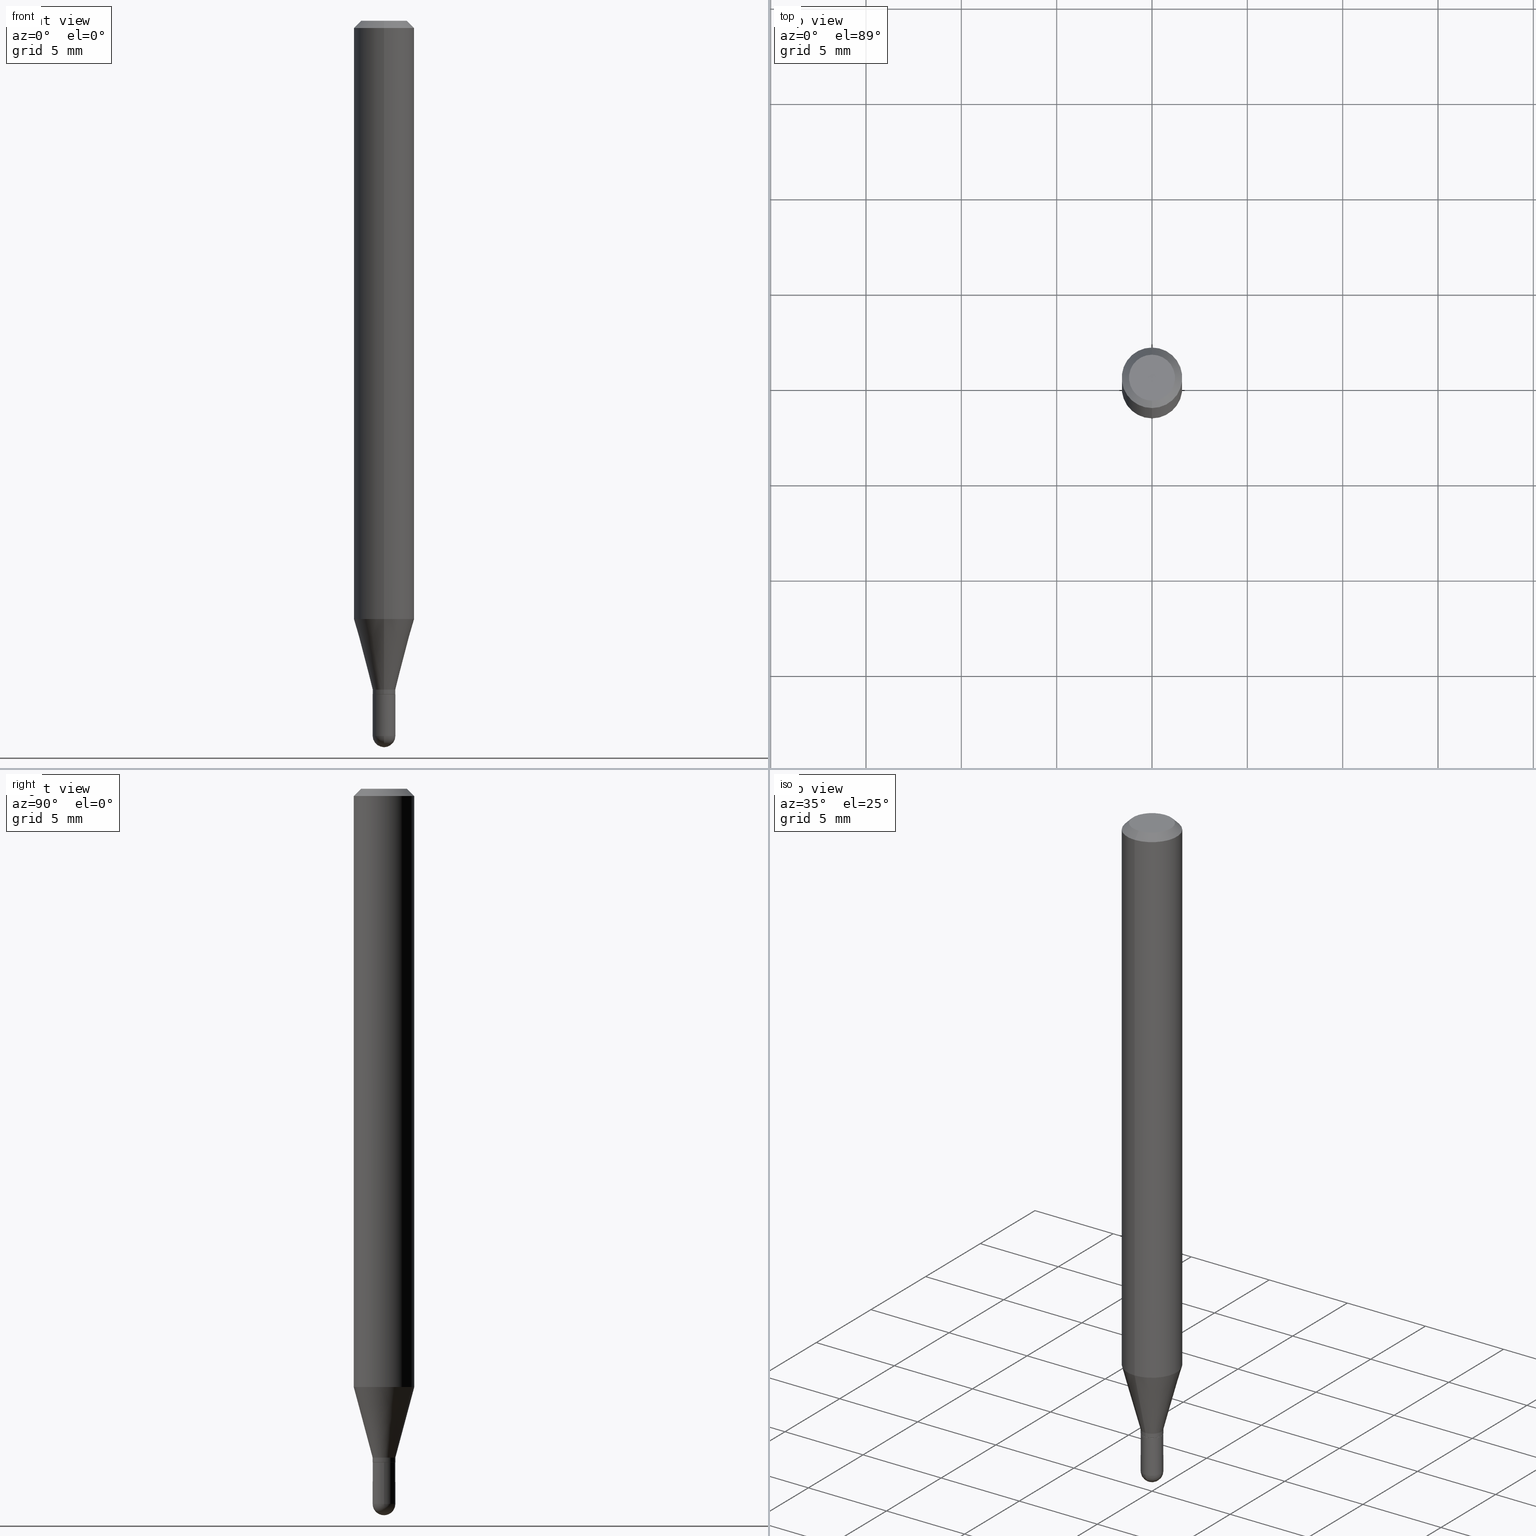
[diagram: canonical four-view strip — front | top / right | iso, engineering-drawing reading convention]
A machine part, canonical four-view strip (front | top / right | iso — engineering-drawing reading convention). The complete STEP part file that produces these views, byte-faithful:
ISO-10303-21;
HEADER;
FILE_DESCRIPTION (( 'STEP AP203' ),
    '1' );
FILE_NAME ('39506.STEP',
    '2024-03-08T12:50:59',
    ( '' ),
    ( '' ),
    'SwSTEP 2.0',
    'SolidWorks 2023',
    '' );
FILE_SCHEMA (( 'CONFIG_CONTROL_DESIGN' ));
ENDSEC;

DATA;
#1 = PERSON_AND_ORGANIZATION_ROLE ( 'creator' ) ;
#2 = CC_DESIGN_PERSON_AND_ORGANIZATION_ASSIGNMENT ( #10, #202, ( #147 ) ) ;
#3 = ORIENTED_EDGE ( 'NONE', *, *, #326, .T. ) ;
#4 = EDGE_CURVE ( 'NONE', #53, #335, #6, .T. ) ;
#5 = ORIENTED_EDGE ( 'NONE', *, *, #483, .T. ) ;
#6 = CIRCLE ( 'NONE', #51, 0.02345000000000019638 ) ;
#7 = CIRCLE ( 'NONE', #176, 0.02344999999999999862 ) ;
#8 = ORIENTED_EDGE ( 'NONE', *, *, #252, .F. ) ;
#9 = DIRECTION ( 'NONE',  ( -2.445355371012872805E-29, 3.491643784466156312E-15, 1.000000000000000000 ) ) ;
#10 = PERSON_AND_ORGANIZATION ( #258, #118 ) ;
#11 = DIRECTION ( 'NONE',  ( -6.982962677686265922E-15, -1.000000000000000000, 0.000000000000000000 ) ) ;
#12 = FACE_OUTER_BOUND ( 'NONE', #312, .T. ) ;
#13 = ADVANCED_FACE ( 'NONE', ( #129 ), #257, .T. ) ;
#14 = DIRECTION ( 'NONE',  ( 1.000000000000000000, -6.982962677686265922E-15, 4.883557194083112901E-29 ) ) ;
#15 = DIRECTION ( 'NONE',  ( -6.982962677686265922E-15, -1.000000000000000000, 0.000000000000000000 ) ) ;
#16 = CC_DESIGN_PERSON_AND_ORGANIZATION_ASSIGNMENT ( #405, #414, ( #346 ) ) ;
#17 = VECTOR ( 'NONE', #186, 39.37007874015748143 ) ;
#18 = FACE_OUTER_BOUND ( 'NONE', #457, .T. ) ;
#19 = VERTEX_POINT ( 'NONE', #195 ) ;
#20 = DIRECTION ( 'NONE',  ( -2.445468806185136597E-29, 3.491481338843145583E-15, 1.000000000000000000 ) ) ;
#21 = ADVANCED_FACE ( 'NONE', ( #404 ), #282, .T. ) ;
#22 = CARTESIAN_POINT ( 'NONE',  ( 1.666222715357800672E-16, 0.02344999999999491241, -1.476549999999999807 ) ) ;
#23 = VECTOR ( 'NONE', #256, 39.37007874015748143 ) ;
#24 = APPROVAL ( #224, 'UNSPECIFIED' ) ;
#25 = CALENDAR_DATE ( 2024, 8, 3 ) ;
#26 = CARTESIAN_POINT ( 'NONE',  ( 1.637504747917769708E-16, 0.02344999999999514140, -1.391000000000000014 ) ) ;
#27 = ADVANCED_FACE ( 'NONE', ( #443 ), #206, .T. ) ;
#28 = ORIENTED_EDGE ( 'NONE', *, *, #357, .F. ) ;
#29 = LOCAL_TIME ( 7, 50, 59.00000000000000000, #509 ) ;
#30 = FACE_OUTER_BOUND ( 'NONE', #74, .T. ) ;
#31 = AXIS2_PLACEMENT_3D ( 'NONE', #369, #332, #102 ) ;
#32 = CARTESIAN_POINT ( 'NONE',  ( 0.02344999999999999862, -1.637504747917429512E-16, 1.143463453924147019E-30 ) ) ;
#33 = DIRECTION ( 'NONE',  ( -6.982962677686265133E-15, -1.000000000000000000, 0.000000000000000000 ) ) ;
#34 = MECHANICAL_CONTEXT ( 'NONE', #432, 'mechanical' ) ;
#35 = APPROVAL_PERSON_ORGANIZATION ( #461, #83, #68 ) ;
#36 = VERTEX_POINT ( 'NONE', #89 ) ;
#37 = EDGE_CURVE ( 'NONE', #56, #36, #496, .T. ) ;
#38 = APPROVAL_ROLE ( '' ) ;
#39 = CARTESIAN_POINT ( 'NONE',  ( 0.02345000000000000556, -5.169749131391573711E-15, -1.476549999999999807 ) ) ;
#40 = ORIENTED_EDGE ( 'NONE', *, *, #387, .F. ) ;
#41 = CIRCLE ( 'NONE', #109, 0.02294999999999999818 ) ;
#42 = AXIS2_PLACEMENT_3D ( 'NONE', #130, #20, #283 ) ;
#43 = DIRECTION ( 'NONE',  ( -2.445468806185136597E-29, 3.491481338843145583E-15, 1.000000000000000000 ) ) ;
#44 = ORIENTED_EDGE ( 'NONE', *, *, #270, .T. ) ;
#45 = ADVANCED_FACE ( 'NONE', ( #18 ), #178, .T. ) ;
#46 = CARTESIAN_POINT ( 'NONE',  ( 3.668033056519500975E-31, -5.237465676699508819E-17, -0.01500000000000078354 ) ) ;
#47 = EDGE_LOOP ( 'NONE', ( #499, #305 ) ) ;
#48 = PERSON_AND_ORGANIZATION ( #258, #118 ) ;
#49 = ORIENTED_EDGE ( 'NONE', *, *, #159, .F. ) ;
#50 = CARTESIAN_POINT ( 'NONE',  ( 4.364351673553921131E-16, 0.06249999999999996531, -0.01500000000000100038 ) ) ;
#51 = AXIS2_PLACEMENT_3D ( 'NONE', #240, #93, #437 ) ;
#52 = AXIS2_PLACEMENT_3D ( 'NONE', #167, #324, #491 ) ;
#53 = VERTEX_POINT ( 'NONE', #201 ) ;
#54 = DIRECTION ( 'NONE',  ( -2.445355371012872805E-29, 3.491643784466156312E-15, 1.000000000000000000 ) ) ;
#55 = DIRECTION ( 'NONE',  ( -6.982962677686265133E-15, -1.000000000000000000, 3.491643784466155918E-15 ) ) ;
#56 = VERTEX_POINT ( 'NONE', #358 ) ;
#57 = ORIENTED_EDGE ( 'NONE', *, *, #145, .T. ) ;
#58 = VECTOR ( 'NONE', #191, 39.37007874015748143 ) ;
#59 = AXIS2_PLACEMENT_3D ( 'NONE', #299, #464, #203 ) ;
#60 = DIRECTION ( 'NONE',  ( -2.445355371012872805E-29, 3.491643784466156312E-15, 1.000000000000000000 ) ) ;
#61 = ADVANCED_FACE ( 'NONE', ( #12 ), #163, .T. ) ;
#62 = DIRECTION ( 'NONE',  ( -1.000000000000000000, 6.982962677686265922E-15, -4.883557194083112340E-29 ) ) ;
#63 = LINE ( 'NONE', #100, #508 ) ;
#64 = CC_DESIGN_APPROVAL ( #303, ( #147 ) ) ;
#65 = EDGE_CURVE ( 'NONE', #335, #53, #495, .T. ) ;
#66 = APPROVAL_STATUS ( 'not_yet_approved' ) ;
#67 =( NAMED_UNIT ( * ) PLANE_ANGLE_UNIT ( ) SI_UNIT ( $, .RADIAN. ) );
#68 = APPROVAL_ROLE ( '' ) ;
#69 = AXIS2_PLACEMENT_3D ( 'NONE', #322, #441, #15 ) ;
#70 = DIRECTION ( 'NONE',  ( -6.982962677686265922E-15, -1.000000000000000000, 0.000000000000000000 ) ) ;
#71 = CONICAL_SURFACE ( 'NONE', #59, 0.06250000000000001388, 0.7853981633974473908 ) ;
#72 =( NAMED_UNIT ( * ) SI_UNIT ( $, .STERADIAN. ) SOLID_ANGLE_UNIT ( ) );
#73 = ADVANCED_FACE ( 'NONE', ( #406 ), #287, .T. ) ;
#74 = EDGE_LOOP ( 'NONE', ( #158, #267, #117, #49 ) ) ;
#75 = APPROVAL_DATE_TIME ( #306, #24 ) ;
#76 = CARTESIAN_POINT ( 'NONE',  ( 3.020658028844344291E-29, -4.313099828530658848E-15, -1.235263415964436895 ) ) ;
#77 = APPROVAL_ROLE ( '' ) ;
#78 = ORIENTED_EDGE ( 'NONE', *, *, #192, .F. ) ;
#79 = EDGE_CURVE ( 'NONE', #232, #376, #477, .T. ) ;
#80 = CONICAL_SURFACE ( 'NONE', #221, 0.06250000000000001388, 0.7853981633974473908 ) ;
#81 = DATE_AND_TIME ( #197, #278 ) ;
#82 = ORIENTED_EDGE ( 'NONE', *, *, #108, .F. ) ;
#83 = APPROVAL ( #66, 'UNSPECIFIED' ) ;
#84 = LINE ( 'NONE', #394, #58 ) ;
#85 = VERTEX_POINT ( 'NONE', #168 ) ;
#86 = CYLINDRICAL_SURFACE ( 'NONE', #214, 0.02344999999999999862 ) ;
#87 = VERTEX_POINT ( 'NONE', #444 ) ;
#88 = LINE ( 'NONE', #50, #410 ) ;
#89 = CARTESIAN_POINT ( 'NONE',  ( 3.840629472727450339E-16, 0.04750000000000004219, -9.492000972570193079E-16 ) ) ;
#90 = CARTESIAN_POINT ( 'NONE',  ( 3.377035767368778363E-29, -4.821960066347763287E-15, -1.381000000000000449 ) ) ;
#91 = DIRECTION ( 'NONE',  ( -6.982962677686265133E-15, -1.000000000000000000, 3.491643784466155918E-15 ) ) ;
#92 = DIRECTION ( 'NONE',  ( -6.982962677686265922E-15, -1.000000000000000000, 0.000000000000000000 ) ) ;
#93 = DIRECTION ( 'NONE',  ( -2.445355371012872805E-29, 3.491643784466156312E-15, 1.000000000000000000 ) ) ;
#94 = ORIENTED_EDGE ( 'NONE', *, *, #226, .T. ) ;
#95 = CIRCLE ( 'NONE', #409, 0.06250000000000001388 ) ;
#96 = CONICAL_SURFACE ( 'NONE', #388, 0.02294999999999999818, 0.7853981633969275844 ) ;
#97 = VECTOR ( 'NONE', #54, 39.37007874015748143 ) ;
#98 = ORIENTED_EDGE ( 'NONE', *, *, #418, .F. ) ;
#99 = DIRECTION ( 'NONE',  ( -2.445355371012872805E-29, 3.491643784466156312E-15, 1.000000000000000000 ) ) ;
#100 = CARTESIAN_POINT ( 'NONE',  ( -1.637504747917424089E-16, -0.02344999999999992230, 8.187904674573109926E-17 ) ) ;
#101 = ADVANCED_FACE ( 'NONE', ( #30 ), #211, .T. ) ;
#102 = DIRECTION ( 'NONE',  ( -6.982962677686265133E-15, -1.000000000000000000, 3.491643784466155918E-15 ) ) ;
#103 = LINE ( 'NONE', #293, #23 ) ;
#104 = LOCAL_TIME ( 7, 50, 59.00000000000000000, #374 ) ;
#105 = LINE ( 'NONE', #296, #445 ) ;
#106 = MANIFOLD_SOLID_BREP ( 'Body-Move/Copy2[1]', #220 ) ;
#107 = DESIGN_CONTEXT ( 'detailed design', #336, 'design' ) ;
#108 = EDGE_CURVE ( 'NONE', #121, #284, #321, .T. ) ;
#109 = AXIS2_PLACEMENT_3D ( 'NONE', #171, #99, #250 ) ;
#110 = AXIS2_PLACEMENT_3D ( 'NONE', #161, #14, #431 ) ;
#111 = PRODUCT_DEFINITION ( 'UNKNOWN', '', #147, #107 ) ;
#112 = ORIENTED_EDGE ( 'NONE', *, *, #415, .T. ) ;
#113 = DIRECTION ( 'NONE',  ( 2.445355371012872525E-29, -3.491643784466156312E-15, -1.000000000000000000 ) ) ;
#114 = ORIENTED_EDGE ( 'NONE', *, *, #217, .T. ) ;
#115 = CARTESIAN_POINT ( 'NONE',  ( 3.608851600824538277E-29, -5.158218567612847628E-15, -1.476550000000000029 ) ) ;
#116 = CALENDAR_DATE ( 2024, 8, 3 ) ;
#117 = ORIENTED_EDGE ( 'NONE', *, *, #300, .F. ) ;
#118 = ORGANIZATION ( 'UNSPECIFIED', 'UNSPECIFIED', '' ) ;
#119 = CARTESIAN_POINT ( 'NONE',  ( 3.400266643393399837E-29, -4.855130682300190944E-15, -1.390500000000000069 ) ) ;
#120 = AXIS2_PLACEMENT_3D ( 'NONE', #90, #320, #273 ) ;
#121 = VERTEX_POINT ( 'NONE', #122 ) ;
#122 = CARTESIAN_POINT ( 'NONE',  ( -4.364351673553615941E-16, -0.06250000000000432987, -1.235263415964436673 ) ) ;
#123 = ORIENTED_EDGE ( 'NONE', *, *, #264, .T. ) ;
#124 = LOCAL_TIME ( 7, 50, 59.00000000000000000, #455 ) ;
#125 = EDGE_CURVE ( 'NONE', #301, #232, #390, .T. ) ;
#126 = FACE_OUTER_BOUND ( 'NONE', #234, .T. ) ;
#127 = CIRCLE ( 'NONE', #205, 0.02345000000000000556 ) ;
#128 = ORIENTED_EDGE ( 'NONE', *, *, #65, .T. ) ;
#129 = FACE_OUTER_BOUND ( 'NONE', #272, .T. ) ;
#130 = CARTESIAN_POINT ( 'NONE',  ( 3.610856965772663268E-29, -5.155346770868846109E-15, -1.476549999999999807 ) ) ;
#131 = ORIENTED_EDGE ( 'NONE', *, *, #418, .T. ) ;
#132 = ORIENTED_EDGE ( 'NONE', *, *, #4, .T. ) ;
#133 = AXIS2_PLACEMENT_3D ( 'NONE', #401, #328, #55 ) ;
#134 = CARTESIAN_POINT ( 'NONE',  ( 1.666222715357744219E-16, 0.02344999999999471466, -1.390500000000000069 ) ) ;
#135 = DIMENSIONAL_EXPONENTS ( 1.000000000000000000, 0.000000000000000000, 0.000000000000000000, 0.000000000000000000, 0.000000000000000000, 0.000000000000000000, 0.000000000000000000 ) ;
#136 = EDGE_CURVE ( 'NONE', #465, #413, #233, .T. ) ;
#137 = DIRECTION ( 'NONE',  ( -2.445355371012872805E-29, 3.491643784466156312E-15, 1.000000000000000000 ) ) ;
#138 = AXIS2_PLACEMENT_3D ( 'NONE', #271, #440, #153 ) ;
#139 = DIRECTION ( 'NONE',  ( -1.807323732225330534E-15, -0.2588190451025182415, 0.9659258262890689783 ) ) ;
#140 = VERTEX_POINT ( 'NONE', #505 ) ;
#141 = ORIENTED_EDGE ( 'NONE', *, *, #407, .F. ) ;
#142 = ADVANCED_FACE ( 'NONE', ( #144 ), #71, .T. ) ;
#143 = UNCERTAINTY_MEASURE_WITH_UNIT (LENGTH_MEASURE( 1.000000000000000082E-05 ), #460, 'distance_accuracy_value', 'NONE');
#144 = FACE_OUTER_BOUND ( 'NONE', #265, .T. ) ;
#145 = EDGE_CURVE ( 'NONE', #36, #193, #88, .T. ) ;
#146 = APPLICATION_PROTOCOL_DEFINITION ( 'international standard', 'config_control_design', 1994, #336 ) ;
#147 = PRODUCT_DEFINITION_FORMATION_WITH_SPECIFIED_SOURCE ( 'ANY', '', #323, .NOT_KNOWN. ) ;
#148 = EDGE_LOOP ( 'NONE', ( #131, #160, #325, #356 ) ) ;
#149 = ADVANCED_FACE ( 'NONE', ( #359 ), #489, .T. ) ;
#150 = DIRECTION ( 'NONE',  ( -4.851104656540959542E-15, -0.7071067811865493491, -0.7071067811865456854 ) ) ;
#151 = ORIENTED_EDGE ( 'NONE', *, *, #483, .F. ) ;
#152 = COORDINATED_UNIVERSAL_TIME_OFFSET ( 5, 0, .BEHIND. ) ;
#153 = DIRECTION ( 'NONE',  ( 1.000000000000000000, -6.982962677686254089E-15, 0.000000000000000000 ) ) ;
#154 = ORIENTED_EDGE ( 'NONE', *, *, #381, .F. ) ;
#155 = EDGE_LOOP ( 'NONE', ( #363, #198, #112, #424 ) ) ;
#156 = AXIS2_PLACEMENT_3D ( 'NONE', #166, #209, #366 ) ;
#157 = AXIS2_PLACEMENT_3D ( 'NONE', #454, #501, #169 ) ;
#158 = ORIENTED_EDGE ( 'NONE', *, *, #108, .T. ) ;
#159 = EDGE_CURVE ( 'NONE', #121, #190, #315, .T. ) ;
#160 = ORIENTED_EDGE ( 'NONE', *, *, #387, .T. ) ;
#161 = CARTESIAN_POINT ( 'NONE',  ( 3.608851600824538277E-29, -5.158218567612847628E-15, -1.476550000000000029 ) ) ;
#162 = CC_DESIGN_PERSON_AND_ORGANIZATION_ASSIGNMENT ( #48, #355, ( #147 ) ) ;
#163 = CYLINDRICAL_SURFACE ( 'NONE', #288, 0.02344999999999999862 ) ;
#164 = CARTESIAN_POINT ( 'NONE',  ( -4.364351673553916694E-16, -0.06250000000000001388, 2.182277365291347942E-16 ) ) ;
#165 = AXIS2_PLACEMENT_3D ( 'NONE', #46, #402, #242 ) ;
#166 = CARTESIAN_POINT ( 'NONE',  ( 3.401489321078907027E-29, -4.856876504192424145E-15, -1.391000000000000236 ) ) ;
#167 = CARTESIAN_POINT ( 'NONE',  ( 0.000000000000000000, 0.000000000000000000, 0.000000000000000000 ) ) ;
#168 = CARTESIAN_POINT ( 'NONE',  ( -1.637504747917073539E-16, -0.02345000000000522361, -1.476549999999999807 ) ) ;
#169 = DIRECTION ( 'NONE',  ( -6.982962677686265922E-15, -1.000000000000000000, 3.491643784466156312E-15 ) ) ;
#170 = CARTESIAN_POINT ( 'NONE',  ( 3.610856965772663268E-29, -5.155346770868846109E-15, -1.476549999999999807 ) ) ;
#171 = CARTESIAN_POINT ( 'NONE',  ( 3.401489321078907027E-29, -4.856876504192424145E-15, -1.391000000000000236 ) ) ;
#172 = AXIS2_PLACEMENT_3D ( 'NONE', #345, #113, #504 ) ;
#173 = LINE ( 'NONE', #215, #247 ) ;
#174 = ADVANCED_FACE ( 'NONE', ( #485 ), #80, .T. ) ;
#175 = DIRECTION ( 'NONE',  ( -4.937700262161976356E-15, -0.7071067811861768693, 0.7071067811869181652 ) ) ;
#176 = AXIS2_PLACEMENT_3D ( 'NONE', #327, #456, #285 ) ;
#177 = EDGE_CURVE ( 'NONE', #19, #223, #380, .T. ) ;
#178 = CONICAL_SURFACE ( 'NONE', #156, 0.02294999999999999818, 0.7853981633969275844 ) ;
#179 = DIRECTION ( 'NONE',  ( -2.445355371012872805E-29, 3.491643784466156312E-15, 1.000000000000000000 ) ) ;
#180 = ORIENTED_EDGE ( 'NONE', *, *, #226, .F. ) ;
#181 = ADVANCED_FACE ( 'NONE', ( #126 ), #361, .T. ) ;
#182 = CIRCLE ( 'NONE', #138, 0.02345000000000000556 ) ;
#183 = ORIENTED_EDGE ( 'NONE', *, *, #300, .T. ) ;
#184 = DIRECTION ( 'NONE',  ( 1.000000000000000000, 0.000000000000000000, 0.000000000000000000 ) ) ;
#185 = EDGE_CURVE ( 'NONE', #87, #140, #208, .T. ) ;
#186 = DIRECTION ( 'NONE',  ( -2.445355371012872805E-29, 3.491643784466156312E-15, 1.000000000000000000 ) ) ;
#187 = ORIENTED_EDGE ( 'NONE', *, *, #307, .F. ) ;
#188 = CARTESIAN_POINT ( 'NONE',  ( 4.440892098500626162E-16, 0.06250000000000001388, -2.182277365291347942E-16 ) ) ;
#189 = PRODUCT_DEFINITION_SHAPE ( 'NONE', 'NONE',  #111 ) ;
#190 = VERTEX_POINT ( 'NONE', #260 ) ;
#191 = DIRECTION ( 'NONE',  ( 5.024295867785445738E-15, 0.7071067811861817543, 0.7071067811869132802 ) ) ;
#192 = EDGE_CURVE ( 'NONE', #314, #87, #339, .T. ) ;
#193 = VERTEX_POINT ( 'NONE', #371 ) ;
#194 = DIRECTION ( 'NONE',  ( -2.445468806185136597E-29, 3.491481338843145583E-15, 1.000000000000000000 ) ) ;
#195 = CARTESIAN_POINT ( 'NONE',  ( 1.648459146963756983E-16, 0.02294999999999514095, -1.391000000000000236 ) ) ;
#196 = CLOSED_SHELL ( 'NONE', ( #73, #289, #142, #101, #181, #13, #27, #174, #488, #439, #45, #21 ) ) ;
#197 = CALENDAR_DATE ( 2024, 8, 3 ) ;
#198 = ORIENTED_EDGE ( 'NONE', *, *, #307, .T. ) ;
#199 = CC_DESIGN_PERSON_AND_ORGANIZATION_ASSIGNMENT ( #342, #506, ( #323 ) ) ;
#200 = DIRECTION ( 'NONE',  ( -2.445355371012872805E-29, 3.491643784466156312E-15, 1.000000000000000000 ) ) ;
#201 = CARTESIAN_POINT ( 'NONE',  ( 3.053557406929357877E-16, 0.02344999999999537385, -1.381000000000000449 ) ) ;
#202 = PERSON_AND_ORGANIZATION_ROLE ( 'design_supplier' ) ;
#203 = DIRECTION ( 'NONE',  ( 6.982962677686265922E-15, 1.000000000000000000, -3.483106191921934765E-15 ) ) ;
#204 = EDGE_LOOP ( 'NONE', ( #411, #269, #343, #308 ) ) ;
#205 = AXIS2_PLACEMENT_3D ( 'NONE', #259, #377, #470 ) ;
#206 = CYLINDRICAL_SURFACE ( 'NONE', #419, 0.06250000000000001388 ) ;
#207 = CC_DESIGN_DATE_AND_TIME_ASSIGNMENT ( #436, #400, ( #111 ) ) ;
#208 = CIRCLE ( 'NONE', #500, 0.02344999999999999862 ) ;
#209 = DIRECTION ( 'NONE',  ( -2.445355371012872805E-29, 3.491643784466156312E-15, 1.000000000000000000 ) ) ;
#210 = FACE_OUTER_BOUND ( 'NONE', #249, .T. ) ;
#211 = CYLINDRICAL_SURFACE ( 'NONE', #31, 0.06250000000000001388 ) ;
#212 = SPHERICAL_SURFACE ( 'NONE', #426, 0.02345000000000013740 ) ;
#213 = DIRECTION ( 'NONE',  ( -2.445468806185136877E-29, 3.491481338843145188E-15, 1.000000000000000000 ) ) ;
#214 = AXIS2_PLACEMENT_3D ( 'NONE', #389, #43, #238 ) ;
#215 = CARTESIAN_POINT ( 'NONE',  ( -1.602589934528657519E-16, -0.02295000000000485540, -1.391000000000000236 ) ) ;
#216 = ORIENTED_EDGE ( 'NONE', *, *, #326, .F. ) ;
#217 = EDGE_CURVE ( 'NONE', #223, #465, #173, .T. ) ;
#218 = DIRECTION ( 'NONE',  ( -2.445355371012872805E-29, 3.491643784466156312E-15, 1.000000000000000000 ) ) ;
#219 = SHAPE_DEFINITION_REPRESENTATION ( #189, #333 ) ;
#220 = CLOSED_SHELL ( 'NONE', ( #61, #149, #479, #458, #397 ) ) ;
#221 = AXIS2_PLACEMENT_3D ( 'NONE', #403, #281, #482 ) ;
#222 = DIRECTION ( 'NONE',  ( -6.982962677686265922E-15, -1.000000000000000000, 3.483106191921934765E-15 ) ) ;
#223 = VERTEX_POINT ( 'NONE', #291 ) ;
#224 = APPROVAL_STATUS ( 'not_yet_approved' ) ;
#225 = ORIENTED_EDGE ( 'NONE', *, *, #381, .T. ) ;
#226 = EDGE_CURVE ( 'NONE', #335, #121, #105, .T. ) ;
#227 = DIRECTION ( 'NONE',  ( -6.982962677686265922E-15, -1.000000000000000000, 4.370956789862821150E-15 ) ) ;
#228 = FACE_OUTER_BOUND ( 'NONE', #386, .T. ) ;
#229 = DIRECTION ( 'NONE',  ( -2.445355371012872805E-29, 3.491643784466156312E-15, 1.000000000000000000 ) ) ;
#230 = VECTOR ( 'NONE', #150, 39.37007874015748143 ) ;
#231 = CARTESIAN_POINT ( 'NONE',  ( 4.440892098500924943E-16, 0.06249999999999566319, -1.235263415964437339 ) ) ;
#232 = VERTEX_POINT ( 'NONE', #22 ) ;
#233 = CIRCLE ( 'NONE', #453, 0.02344999999999965168 ) ;
#234 = EDGE_LOOP ( 'NONE', ( #128, #353, #82, #180 ) ) ;
#235 = APPROVAL_DATE_TIME ( #81, #303 ) ;
#236 = ORIENTED_EDGE ( 'NONE', *, *, #145, .F. ) ;
#237 = CARTESIAN_POINT ( 'NONE',  ( 3.401647109403525181E-29, -4.856650542330816199E-15, -1.391000000000000014 ) ) ;
#238 = DIRECTION ( 'NONE',  ( 1.000000000000000000, -6.982962677686266711E-15, 4.876176775795936353E-29 ) ) ;
#239 = ORIENTED_EDGE ( 'NONE', *, *, #79, .F. ) ;
#240 = CARTESIAN_POINT ( 'NONE',  ( 3.377035767368778363E-29, -4.821960066347763287E-15, -1.381000000000000449 ) ) ;
#241 = EDGE_CURVE ( 'NONE', #140, #87, #7, .T. ) ;
#242 = DIRECTION ( 'NONE',  ( -6.982962677686265922E-15, -1.000000000000000000, 3.483106191921934765E-15 ) ) ;
#243 = CARTESIAN_POINT ( 'NONE',  ( 0.000000000000000000, 0.000000000000000000, 0.000000000000000000 ) ) ;
#244 = AXIS2_PLACEMENT_3D ( 'NONE', #170, #248, #412 ) ;
#245 = VECTOR ( 'NONE', #451, 39.37007874015748143 ) ;
#246 = CARTESIAN_POINT ( 'NONE',  ( 0.000000000000000000, 0.000000000000000000, 0.000000000000000000 ) ) ;
#247 = VECTOR ( 'NONE', #175, 39.37007874015748143 ) ;
#248 = DIRECTION ( 'NONE',  ( -2.445468806185136597E-29, 3.491481338843145583E-15, 1.000000000000000000 ) ) ;
#249 = EDGE_LOOP ( 'NONE', ( #512, #351, #151, #239 ) ) ;
#250 = DIRECTION ( 'NONE',  ( -6.982962677686265922E-15, -1.000000000000000000, 0.000000000000000000 ) ) ;
#251 = CALENDAR_DATE ( 2024, 8, 3 ) ;
#252 = EDGE_CURVE ( 'NONE', #314, #232, #474, .T. ) ;
#253 = PLANE ( 'NONE',  #157 ) ;
#254 = EDGE_CURVE ( 'NONE', #376, #140, #368, .T. ) ;
#255 = CARTESIAN_POINT ( 'NONE',  ( 3.020658028844344291E-29, -4.313099828530658848E-15, -1.235263415964436895 ) ) ;
#256 = DIRECTION ( 'NONE',  ( -2.445355371012872805E-29, 3.491643784466156312E-15, 1.000000000000000000 ) ) ;
#257 = CONICAL_SURFACE ( 'NONE', #69, 0.02345000000000019638, 0.2617993877991502960 ) ;
#258 = PERSON ( 'UNSPECIFIED', 'UNSPECIFIED', 'UNSPECIFIED', ('UNSPECIFIED'), ('UNSPECIFIED'), ('UNSPECIFIED') ) ;
#259 = CARTESIAN_POINT ( 'NONE',  ( 3.610856965772663268E-29, -5.155346770868846109E-15, -1.476549999999999807 ) ) ;
#260 = CARTESIAN_POINT ( 'NONE',  ( -4.364351673553913736E-16, -0.06250000000000006939, -0.01500000000000056496 ) ) ;
#261 = CARTESIAN_POINT ( 'NONE',  ( 3.401489321078907027E-29, -4.856876504192424145E-15, -1.391000000000000236 ) ) ;
#262 = LENGTH_MEASURE_WITH_UNIT ( LENGTH_MEASURE( 0.02539999999999999897 ), #341 );
#263 = AXIS2_PLACEMENT_3D ( 'NONE', #493, #486, #92 ) ;
#264 = EDGE_CURVE ( 'NONE', #193, #190, #95, .T. ) ;
#265 = EDGE_LOOP ( 'NONE', ( #316, #434, #183, #236 ) ) ;
#266 = CARTESIAN_POINT ( 'NONE',  ( 3.668033056519500975E-31, -5.237465676699508819E-17, -0.01500000000000078354 ) ) ;
#267 = ORIENTED_EDGE ( 'NONE', *, *, #364, .T. ) ;
#268 = CIRCLE ( 'NONE', #294, 0.06250000000000000000 ) ;
#269 = ORIENTED_EDGE ( 'NONE', *, *, #433, .T. ) ;
#270 = EDGE_CURVE ( 'NONE', #36, #56, #463, .T. ) ;
#271 = CARTESIAN_POINT ( 'NONE',  ( 3.610856965772663268E-29, -5.155346770868846109E-15, -1.476549999999999807 ) ) ;
#272 = EDGE_LOOP ( 'NONE', ( #141, #132, #94, #154 ) ) ;
#273 = DIRECTION ( 'NONE',  ( -6.982962677686265922E-15, -1.000000000000000000, 0.000000000000000000 ) ) ;
#274 = FACE_OUTER_BOUND ( 'NONE', #469, .T. ) ;
#275 = ORIENTED_EDGE ( 'NONE', *, *, #177, .T. ) ;
#276 = ORIENTED_EDGE ( 'NONE', *, *, #79, .T. ) ;
#277 = DIRECTION ( 'NONE',  ( -6.982962677686265133E-15, -1.000000000000000000, 0.000000000000000000 ) ) ;
#278 = LOCAL_TIME ( 7, 50, 59.00000000000000000, #350 ) ;
#279 = APPROVAL_STATUS ( 'not_yet_approved' ) ;
#280 = ORIENTED_EDGE ( 'NONE', *, *, #252, .T. ) ;
#281 = DIRECTION ( 'NONE',  ( 2.445355371012872805E-29, -3.491643784466156312E-15, -1.000000000000000000 ) ) ;
#282 = CYLINDRICAL_SURFACE ( 'NONE', #286, 0.02344999999999992230 ) ;
#283 = DIRECTION ( 'NONE',  ( 1.000000000000000000, -6.982962677686254089E-15, 0.000000000000000000 ) ) ;
#284 = VERTEX_POINT ( 'NONE', #231 ) ;
#285 = DIRECTION ( 'NONE',  ( 1.000000000000000000, -6.982962677686256455E-15, 0.000000000000000000 ) ) ;
#286 = AXIS2_PLACEMENT_3D ( 'NONE', #484, #60, #354 ) ;
#287 = CYLINDRICAL_SURFACE ( 'NONE', #52, 0.02344999999999992230 ) ;
#288 = AXIS2_PLACEMENT_3D ( 'NONE', #243, #490, #318 ) ;
#289 = ADVANCED_FACE ( 'NONE', ( #459 ), #96, .T. ) ;
#290 = DATE_AND_TIME ( #251, #124 ) ;
#291 = CARTESIAN_POINT ( 'NONE',  ( -1.602589934528657519E-16, -0.02295000000000485540, -1.391000000000000236 ) ) ;
#292 = DIRECTION ( 'NONE',  ( -2.445355371012872805E-29, 3.491643784466156312E-15, 1.000000000000000000 ) ) ;
#293 = CARTESIAN_POINT ( 'NONE',  ( 1.666222715357429168E-16, 0.02344999999999992230, -8.187904674573109926E-17 ) ) ;
#294 = AXIS2_PLACEMENT_3D ( 'NONE', #76, #229, #429 ) ;
#295 = AXIS2_PLACEMENT_3D ( 'NONE', #435, #200, #11 ) ;
#296 = CARTESIAN_POINT ( 'NONE',  ( -1.637504747917105586E-16, -0.02345000000000501891, -1.381000000000000449 ) ) ;
#297 = CARTESIAN_POINT ( 'NONE',  ( 3.608851600824538277E-29, -5.158218567612847628E-15, -1.476550000000000029 ) ) ;
#298 = DIRECTION ( 'NONE',  ( -6.982962677686265133E-15, -1.000000000000000000, 3.491643784466155918E-15 ) ) ;
#299 = CARTESIAN_POINT ( 'NONE',  ( 3.668033056519500975E-31, -5.237465676699508819E-17, -0.01500000000000078354 ) ) ;
#300 = EDGE_CURVE ( 'NONE', #190, #193, #378, .T. ) ;
#301 = VERTEX_POINT ( 'NONE', #510 ) ;
#302 = DIRECTION ( 'NONE',  ( 0.000000000000000000, 0.000000000000000000, 1.000000000000000000 ) ) ;
#303 = APPROVAL ( #279, 'UNSPECIFIED' ) ;
#304 = LINE ( 'NONE', #188, #17 ) ;
#305 = ORIENTED_EDGE ( 'NONE', *, *, #241, .T. ) ;
#306 = DATE_AND_TIME ( #466, #29 ) ;
#307 = EDGE_CURVE ( 'NONE', #413, #465, #360, .T. ) ;
#308 = ORIENTED_EDGE ( 'NONE', *, *, #415, .F. ) ;
#309 = VECTOR ( 'NONE', #468, 39.37007874015748143 ) ;
#310 = DIRECTION ( 'NONE',  ( -2.445355371012872805E-29, 3.491643784466156312E-15, 1.000000000000000000 ) ) ;
#311 = APPROVAL_PERSON_ORGANIZATION ( #420, #24, #38 ) ;
#312 = EDGE_LOOP ( 'NONE', ( #276, #362, #430, #78, #280 ) ) ;
#313 = AXIS2_PLACEMENT_3D ( 'NONE', #255, #292, #227 ) ;
#314 = VERTEX_POINT ( 'NONE', #39 ) ;
#315 = LINE ( 'NONE', #164, #97 ) ;
#316 = ORIENTED_EDGE ( 'NONE', *, *, #37, .F. ) ;
#317 = CC_DESIGN_SECURITY_CLASSIFICATION ( #346, ( #147 ) ) ;
#318 = DIRECTION ( 'NONE',  ( 1.000000000000000000, -6.982962677686266711E-15, 4.876176775795936353E-29 ) ) ;
#319 = LOCAL_TIME ( 7, 50, 59.00000000000000000, #152 ) ;
#320 = DIRECTION ( 'NONE',  ( -2.445355371012872805E-29, 3.491643784466156312E-15, 1.000000000000000000 ) ) ;
#321 = CIRCLE ( 'NONE', #313, 0.06250000000000000000 ) ;
#322 = CARTESIAN_POINT ( 'NONE',  ( 3.377035767368778363E-29, -4.821960066347763287E-15, -1.381000000000000449 ) ) ;
#323 = PRODUCT ( '39506', '39506', '', ( #34 ) ) ;
#324 = DIRECTION ( 'NONE',  ( -2.445355371012872805E-29, 3.491643784466156312E-15, 1.000000000000000000 ) ) ;
#325 = ORIENTED_EDGE ( 'NONE', *, *, #136, .F. ) ;
#326 = EDGE_CURVE ( 'NONE', #85, #314, #182, .T. ) ;
#327 = CARTESIAN_POINT ( 'NONE',  ( 3.401647109403525181E-29, -4.856650542330816199E-15, -1.391000000000000014 ) ) ;
#328 = DIRECTION ( 'NONE',  ( -2.445355371012872805E-29, 3.491643784466156312E-15, 1.000000000000000000 ) ) ;
#329 = CARTESIAN_POINT ( 'NONE',  ( -0.02344999999999999862, 1.666222715357434838E-16, -1.153490278664775476E-30 ) ) ;
#330 = AXIS2_PLACEMENT_3D ( 'NONE', #370, #62, #497 ) ;
#331 = DIRECTION ( 'NONE',  ( 1.000000000000000000, -6.982962677686265922E-15, 4.883557194083112901E-29 ) ) ;
#332 = DIRECTION ( 'NONE',  ( -2.445355371012872805E-29, 3.491643784466156312E-15, 1.000000000000000000 ) ) ;
#333 = ADVANCED_BREP_SHAPE_REPRESENTATION ( '39506', ( #106, #447, #475 ), #338 ) ;
#334 = DIRECTION ( 'NONE',  ( 2.438088387897960049E-29, -3.491481338843145188E-15, -1.000000000000000000 ) ) ;
#335 = VERTEX_POINT ( 'NONE', #511 ) ;
#336 = APPLICATION_CONTEXT ( 'configuration controlled 3d designs of mechanical parts and assemblies' ) ;
#337 = LINE ( 'NONE', #446, #245 ) ;
#338 =( GEOMETRIC_REPRESENTATION_CONTEXT ( 3 ) GLOBAL_UNCERTAINTY_ASSIGNED_CONTEXT ( ( #143 ) ) GLOBAL_UNIT_ASSIGNED_CONTEXT ( ( #460, #67, #72 ) ) REPRESENTATION_CONTEXT ( 'NONE', 'WORKASPACE' ) );
#339 = LINE ( 'NONE', #32, #340 ) ;
#340 = VECTOR ( 'NONE', #213, 39.37007874015748143 ) ;
#341 =( LENGTH_UNIT ( ) NAMED_UNIT ( * ) SI_UNIT ( $, .METRE. ) );
#342 = PERSON_AND_ORGANIZATION ( #258, #118 ) ;
#343 = ORIENTED_EDGE ( 'NONE', *, *, #65, .F. ) ;
#344 = CC_DESIGN_PERSON_AND_ORGANIZATION_ASSIGNMENT ( #348, #1, ( #111 ) ) ;
#345 = CARTESIAN_POINT ( 'NONE',  ( 3.316907271900979054E-16, 0.04750000000000004219, -5.575265885095808659E-16 ) ) ;
#346 = SECURITY_CLASSIFICATION ( '', '', #408 ) ;
#347 = ORIENTED_EDGE ( 'NONE', *, *, #159, .T. ) ;
#348 = PERSON_AND_ORGANIZATION ( #258, #118 ) ;
#349 = ORIENTED_EDGE ( 'NONE', *, *, #241, .F. ) ;
#350 = COORDINATED_UNIVERSAL_TIME_OFFSET ( 5, 0, .BEHIND. ) ;
#351 = ORIENTED_EDGE ( 'NONE', *, *, #449, .T. ) ;
#352 = DIRECTION ( 'NONE',  ( 7.105427357601001070E-15, 1.000000000000000000, 0.000000000000000000 ) ) ;
#353 = ORIENTED_EDGE ( 'NONE', *, *, #407, .T. ) ;
#354 = DIRECTION ( 'NONE',  ( -6.982962677686266711E-15, -1.000000000000000000, 3.491643784466156707E-15 ) ) ;
#355 = PERSON_AND_ORGANIZATION_ROLE ( 'creator' ) ;
#356 = ORIENTED_EDGE ( 'NONE', *, *, #217, .F. ) ;
#357 = EDGE_CURVE ( 'NONE', #56, #190, #480, .T. ) ;
#358 = CARTESIAN_POINT ( 'NONE',  ( -3.773273898774342241E-16, -0.04750000000000004219, -6.174939377327341644E-16 ) ) ;
#359 = FACE_OUTER_BOUND ( 'NONE', #392, .T. ) ;
#360 = CIRCLE ( 'NONE', #452, 0.02344999999999965168 ) ;
#361 = CONICAL_SURFACE ( 'NONE', #120, 0.02345000000000019638, 0.2617993877991502960 ) ;
#362 = ORIENTED_EDGE ( 'NONE', *, *, #254, .T. ) ;
#363 = ORIENTED_EDGE ( 'NONE', *, *, #433, .F. ) ;
#364 = EDGE_CURVE ( 'NONE', #284, #193, #304, .T. ) ;
#365 = DATE_TIME_ROLE ( 'classification_date' ) ;
#366 = DIRECTION ( 'NONE',  ( -6.982962677686265922E-15, -1.000000000000000000, 0.000000000000000000 ) ) ;
#367 = DIRECTION ( 'NONE',  ( -6.982962677686265922E-15, -1.000000000000000000, 0.000000000000000000 ) ) ;
#368 = LINE ( 'NONE', #329, #309 ) ;
#369 = CARTESIAN_POINT ( 'NONE',  ( 0.000000000000000000, 0.000000000000000000, 0.000000000000000000 ) ) ;
#370 = CARTESIAN_POINT ( 'NONE',  ( 3.608851600824538277E-29, -5.158218567612847628E-15, -1.476550000000000029 ) ) ;
#371 = CARTESIAN_POINT ( 'NONE',  ( 4.440892098500930859E-16, 0.06249999999999996531, -0.01500000000000100038 ) ) ;
#372 = CC_DESIGN_APPROVAL ( #24, ( #111 ) ) ;
#373 = FACE_OUTER_BOUND ( 'NONE', #47, .T. ) ;
#374 = COORDINATED_UNIVERSAL_TIME_OFFSET ( 5, 0, .BEHIND. ) ;
#375 = DATE_AND_TIME ( #25, #104 ) ;
#376 = VERTEX_POINT ( 'NONE', #467 ) ;
#377 = DIRECTION ( 'NONE',  ( -2.445468806185136597E-29, 3.491481338843145583E-15, 1.000000000000000000 ) ) ;
#378 = CIRCLE ( 'NONE', #165, 0.06250000000000001388 ) ;
#379 = APPROVAL_DATE_TIME ( #290, #83 ) ;
#380 = CIRCLE ( 'NONE', #295, 0.02294999999999999818 ) ;
#381 = EDGE_CURVE ( 'NONE', #284, #121, #268, .T. ) ;
#382 = CARTESIAN_POINT ( 'NONE',  ( 3.400266643393399837E-29, -4.855130682300190944E-15, -1.390500000000000069 ) ) ;
#383 = EDGE_LOOP ( 'NONE', ( #28, #492, #57, #123 ) ) ;
#384 = DIRECTION ( 'NONE',  ( 1.000000000000000000, -7.105427357601001070E-15, 4.926315508542082329E-29 ) ) ;
#385 = CARTESIAN_POINT ( 'NONE',  ( 0.000000000000000000, 0.000000000000000000, 0.000000000000000000 ) ) ;
#386 = EDGE_LOOP ( 'NONE', ( #44, #481 ) ) ;
#387 = EDGE_CURVE ( 'NONE', #19, #413, #84, .T. ) ;
#388 = AXIS2_PLACEMENT_3D ( 'NONE', #261, #179, #70 ) ;
#389 = CARTESIAN_POINT ( 'NONE',  ( 0.000000000000000000, 0.000000000000000000, 0.000000000000000000 ) ) ;
#390 = CIRCLE ( 'NONE', #399, 0.02345000000000013740 ) ;
#391 = ORIENTED_EDGE ( 'NONE', *, *, #177, .F. ) ;
#392 = EDGE_LOOP ( 'NONE', ( #395, #421, #8, #216 ) ) ;
#393 = DIRECTION ( 'NONE',  ( -2.445355371012872805E-29, 3.491643784466156312E-15, 1.000000000000000000 ) ) ;
#394 = CARTESIAN_POINT ( 'NONE',  ( 1.630695578569769747E-16, 0.02294999999999514095, -1.391000000000000236 ) ) ;
#395 = ORIENTED_EDGE ( 'NONE', *, *, #449, .F. ) ;
#396 = AXIS2_PLACEMENT_3D ( 'NONE', #26, #334, #498 ) ;
#397 = ADVANCED_FACE ( 'NONE', ( #274 ), #86, .T. ) ;
#398 = ORIENTED_EDGE ( 'NONE', *, *, #364, .F. ) ;
#399 = AXIS2_PLACEMENT_3D ( 'NONE', #115, #384, #352 ) ;
#400 = DATE_TIME_ROLE ( 'creation_date' ) ;
#401 = CARTESIAN_POINT ( 'NONE',  ( 1.915561836598011437E-44, -2.735168744716087513E-30, -7.833470174948766869E-16 ) ) ;
#402 = DIRECTION ( 'NONE',  ( -2.445355371012872805E-29, 3.491643784466156312E-15, 1.000000000000000000 ) ) ;
#403 = CARTESIAN_POINT ( 'NONE',  ( 3.668033056519500975E-31, -5.237465676699508819E-17, -0.01500000000000078354 ) ) ;
#404 = FACE_OUTER_BOUND ( 'NONE', #155, .T. ) ;
#405 = PERSON_AND_ORGANIZATION ( #258, #118 ) ;
#406 = FACE_OUTER_BOUND ( 'NONE', #204, .T. ) ;
#407 = EDGE_CURVE ( 'NONE', #53, #284, #337, .T. ) ;
#408 = SECURITY_CLASSIFICATION_LEVEL ( 'unclassified' ) ;
#409 = AXIS2_PLACEMENT_3D ( 'NONE', #266, #218, #222 ) ;
#410 = VECTOR ( 'NONE', #442, 39.37007874015748143 ) ;
#411 = ORIENTED_EDGE ( 'NONE', *, *, #136, .T. ) ;
#412 = DIRECTION ( 'NONE',  ( 1.000000000000000000, -6.982962677686254089E-15, 0.000000000000000000 ) ) ;
#413 = VERTEX_POINT ( 'NONE', #134 ) ;
#414 = PERSON_AND_ORGANIZATION_ROLE ( 'classification_officer' ) ;
#415 = EDGE_CURVE ( 'NONE', #465, #335, #63, .T. ) ;
#416 = AXIS2_PLACEMENT_3D ( 'NONE', #471, #423, #298 ) ;
#417 = PLANE ( 'NONE',  #396 ) ;
#418 = EDGE_CURVE ( 'NONE', #223, #19, #41, .T. ) ;
#419 = AXIS2_PLACEMENT_3D ( 'NONE', #246, #9, #91 ) ;
#420 = PERSON_AND_ORGANIZATION ( #258, #118 ) ;
#421 = ORIENTED_EDGE ( 'NONE', *, *, #125, .T. ) ;
#422 = APPLICATION_PROTOCOL_DEFINITION ( 'international standard', 'config_control_design', 1994, #432 ) ;
#423 = DIRECTION ( 'NONE',  ( -2.445355371012872805E-29, 3.491643784466156312E-15, 1.000000000000000000 ) ) ;
#424 = ORIENTED_EDGE ( 'NONE', *, *, #4, .F. ) ;
#425 = CC_DESIGN_DATE_AND_TIME_ASSIGNMENT ( #375, #365, ( #346 ) ) ;
#426 = AXIS2_PLACEMENT_3D ( 'NONE', #297, #331, #367 ) ;
#427 = ORIENTED_EDGE ( 'NONE', *, *, #192, .T. ) ;
#428 = PERSON_AND_ORGANIZATION ( #258, #118 ) ;
#429 = DIRECTION ( 'NONE',  ( -6.982962677686265922E-15, -1.000000000000000000, 4.370956789862821150E-15 ) ) ;
#430 = ORIENTED_EDGE ( 'NONE', *, *, #185, .F. ) ;
#431 = DIRECTION ( 'NONE',  ( -6.982962677686265922E-15, -1.000000000000000000, 0.000000000000000000 ) ) ;
#432 = APPLICATION_CONTEXT ( 'configuration controlled 3d designs of mechanical parts and assemblies' ) ;
#433 = EDGE_CURVE ( 'NONE', #413, #53, #103, .T. ) ;
#434 = ORIENTED_EDGE ( 'NONE', *, *, #357, .T. ) ;
#435 = CARTESIAN_POINT ( 'NONE',  ( 3.401489321078907027E-29, -4.856876504192424145E-15, -1.391000000000000236 ) ) ;
#436 = DATE_AND_TIME ( #116, #319 ) ;
#437 = DIRECTION ( 'NONE',  ( -6.982962677686265922E-15, -1.000000000000000000, 0.000000000000000000 ) ) ;
#438 = APPROVAL_PERSON_ORGANIZATION ( #428, #303, #77 ) ;
#439 = ADVANCED_FACE ( 'NONE', ( #494 ), #253, .F. ) ;
#440 = DIRECTION ( 'NONE',  ( -2.445468806185136597E-29, 3.491481338843145583E-15, 1.000000000000000000 ) ) ;
#441 = DIRECTION ( 'NONE',  ( -2.445355371012872805E-29, 3.491643784466156312E-15, 1.000000000000000000 ) ) ;
#442 = DIRECTION ( 'NONE',  ( 4.937700262164543309E-15, 0.7071067811865444641, -0.7071067811865505703 ) ) ;
#443 = FACE_OUTER_BOUND ( 'NONE', #472, .T. ) ;
#444 = CARTESIAN_POINT ( 'NONE',  ( 0.02344999999999999862, -5.020401017122558756E-15, -1.391000000000000014 ) ) ;
#445 = VECTOR ( 'NONE', #139, 39.37007874015748143 ) ;
#446 = CARTESIAN_POINT ( 'NONE',  ( 1.666222715357786128E-16, 0.02344999999999537385, -1.381000000000000449 ) ) ;
#447 = MANIFOLD_SOLID_BREP ( 'Body-Move/Copy2[2]', #196 ) ;
#448 = CARTESIAN_POINT ( 'NONE',  ( -1.637504747917070334E-16, -0.02345000000000458523, -1.390500000000000069 ) ) ;
#449 = EDGE_CURVE ( 'NONE', #301, #85, #487, .T. ) ;
#450 = CC_DESIGN_APPROVAL ( #83, ( #346 ) ) ;
#451 = DIRECTION ( 'NONE',  ( 1.839019923739600710E-15, 0.2588190451025250138, 0.9659258262890670910 ) ) ;
#452 = AXIS2_PLACEMENT_3D ( 'NONE', #119, #310, #277 ) ;
#453 = AXIS2_PLACEMENT_3D ( 'NONE', #382, #393, #33 ) ;
#454 = CARTESIAN_POINT ( 'NONE',  ( 3.401489321078906466E-29, -4.856876504192423356E-15, -1.391000000000000014 ) ) ;
#455 = COORDINATED_UNIVERSAL_TIME_OFFSET ( 5, 0, .BEHIND. ) ;
#456 = DIRECTION ( 'NONE',  ( -2.445468806185136597E-29, 3.491481338843145583E-15, 1.000000000000000000 ) ) ;
#457 = EDGE_LOOP ( 'NONE', ( #40, #275, #114, #187 ) ) ;
#458 = ADVANCED_FACE ( 'NONE', ( #210 ), #212, .T. ) ;
#459 = FACE_OUTER_BOUND ( 'NONE', #148, .T. ) ;
#460 =( CONVERSION_BASED_UNIT ( 'INCH', #262 ) LENGTH_UNIT ( ) NAMED_UNIT ( #135 ) );
#461 = PERSON_AND_ORGANIZATION ( #258, #118 ) ;
#462 = DIRECTION ( 'NONE',  ( 1.000000000000000000, -6.982962677686256455E-15, 0.000000000000000000 ) ) ;
#463 = CIRCLE ( 'NONE', #416, 0.04750000000000004219 ) ;
#464 = DIRECTION ( 'NONE',  ( 2.445355371012872805E-29, -3.491643784466156312E-15, -1.000000000000000000 ) ) ;
#465 = VERTEX_POINT ( 'NONE', #448 ) ;
#466 = CALENDAR_DATE ( 2024, 8, 3 ) ;
#467 = CARTESIAN_POINT ( 'NONE',  ( -0.02345000000000000556, -4.839376385064087079E-15, -1.476549999999999807 ) ) ;
#468 = DIRECTION ( 'NONE',  ( -2.445468806185136877E-29, 3.491481338843145188E-15, 1.000000000000000000 ) ) ;
#469 = EDGE_LOOP ( 'NONE', ( #503, #5, #3, #427, #349 ) ) ;
#470 = DIRECTION ( 'NONE',  ( 1.000000000000000000, -6.982962677686254089E-15, 0.000000000000000000 ) ) ;
#471 = CARTESIAN_POINT ( 'NONE',  ( 1.915561836598011437E-44, -2.735168744716087513E-30, -7.833470174948766869E-16 ) ) ;
#472 = EDGE_LOOP ( 'NONE', ( #398, #225, #347, #507 ) ) ;
#473 = PLANE ( 'NONE',  #172 ) ;
#474 = CIRCLE ( 'NONE', #244, 0.02345000000000000556 ) ;
#475 = AXIS2_PLACEMENT_3D ( 'NONE', #385, #302, #184 ) ;
#476 = CARTESIAN_POINT ( 'NONE',  ( -4.287811248607204268E-16, -0.06250000000000006939, -0.01500000000000056496 ) ) ;
#477 = CIRCLE ( 'NONE', #42, 0.02345000000000000556 ) ;
#478 = EDGE_LOOP ( 'NONE', ( #98, #391 ) ) ;
#479 = ADVANCED_FACE ( 'NONE', ( #373 ), #417, .F. ) ;
#480 = LINE ( 'NONE', #476, #230 ) ;
#481 = ORIENTED_EDGE ( 'NONE', *, *, #37, .T. ) ;
#482 = DIRECTION ( 'NONE',  ( 6.982962677686265922E-15, 1.000000000000000000, -3.483106191921934765E-15 ) ) ;
#483 = EDGE_CURVE ( 'NONE', #376, #85, #127, .T. ) ;
#484 = CARTESIAN_POINT ( 'NONE',  ( 0.000000000000000000, 0.000000000000000000, 0.000000000000000000 ) ) ;
#485 = FACE_OUTER_BOUND ( 'NONE', #383, .T. ) ;
#486 = DIRECTION ( 'NONE',  ( -2.445355371012872805E-29, 3.491643784466156312E-15, 1.000000000000000000 ) ) ;
#487 = CIRCLE ( 'NONE', #330, 0.02345000000000013740 ) ;
#488 = ADVANCED_FACE ( 'NONE', ( #228 ), #473, .F. ) ;
#489 = SPHERICAL_SURFACE ( 'NONE', #110, 0.02345000000000013740 ) ;
#490 = DIRECTION ( 'NONE',  ( -2.445468806185136597E-29, 3.491481338843145583E-15, 1.000000000000000000 ) ) ;
#491 = DIRECTION ( 'NONE',  ( -6.982962677686266711E-15, -1.000000000000000000, 3.491643784466156707E-15 ) ) ;
#492 = ORIENTED_EDGE ( 'NONE', *, *, #270, .F. ) ;
#493 = CARTESIAN_POINT ( 'NONE',  ( 3.377035767368778363E-29, -4.821960066347763287E-15, -1.381000000000000449 ) ) ;
#494 = FACE_OUTER_BOUND ( 'NONE', #478, .T. ) ;
#495 = CIRCLE ( 'NONE', #263, 0.02345000000000019638 ) ;
#496 = CIRCLE ( 'NONE', #133, 0.04750000000000004219 ) ;
#497 = DIRECTION ( 'NONE',  ( -6.982962677686265922E-15, -1.000000000000000000, 0.000000000000000000 ) ) ;
#498 = DIRECTION ( 'NONE',  ( -1.000000000000000000, 6.982962677686265922E-15, -4.876176775795935793E-29 ) ) ;
#499 = ORIENTED_EDGE ( 'NONE', *, *, #185, .T. ) ;
#500 = AXIS2_PLACEMENT_3D ( 'NONE', #237, #194, #462 ) ;
#501 = DIRECTION ( 'NONE',  ( -2.445355371012872525E-29, 3.491643784466156312E-15, 1.000000000000000000 ) ) ;
#502 = PRODUCT_RELATED_PRODUCT_CATEGORY ( 'detail', '', ( #323 ) ) ;
#503 = ORIENTED_EDGE ( 'NONE', *, *, #254, .F. ) ;
#504 = DIRECTION ( 'NONE',  ( 6.982962677686265922E-15, 1.000000000000000000, -3.491643784466156312E-15 ) ) ;
#505 = CARTESIAN_POINT ( 'NONE',  ( -0.02344999999999999862, -4.839376385064087079E-15, -1.391000000000000014 ) ) ;
#506 = PERSON_AND_ORGANIZATION_ROLE ( 'design_owner' ) ;
#507 = ORIENTED_EDGE ( 'NONE', *, *, #264, .F. ) ;
#508 = VECTOR ( 'NONE', #137, 39.37007874015748143 ) ;
#509 = COORDINATED_UNIVERSAL_TIME_OFFSET ( 5, 0, .BEHIND. ) ;
#510 = CARTESIAN_POINT ( 'NONE',  ( 3.665195161855516848E-29, -5.241529703380720060E-15, -1.500000000000000444 ) ) ;
#511 = CARTESIAN_POINT ( 'NONE',  ( -1.637504747917105586E-16, -0.02345000000000501891, -1.381000000000000449 ) ) ;
#512 = ORIENTED_EDGE ( 'NONE', *, *, #125, .F. ) ;
ENDSEC;
END-ISO-10303-21;
